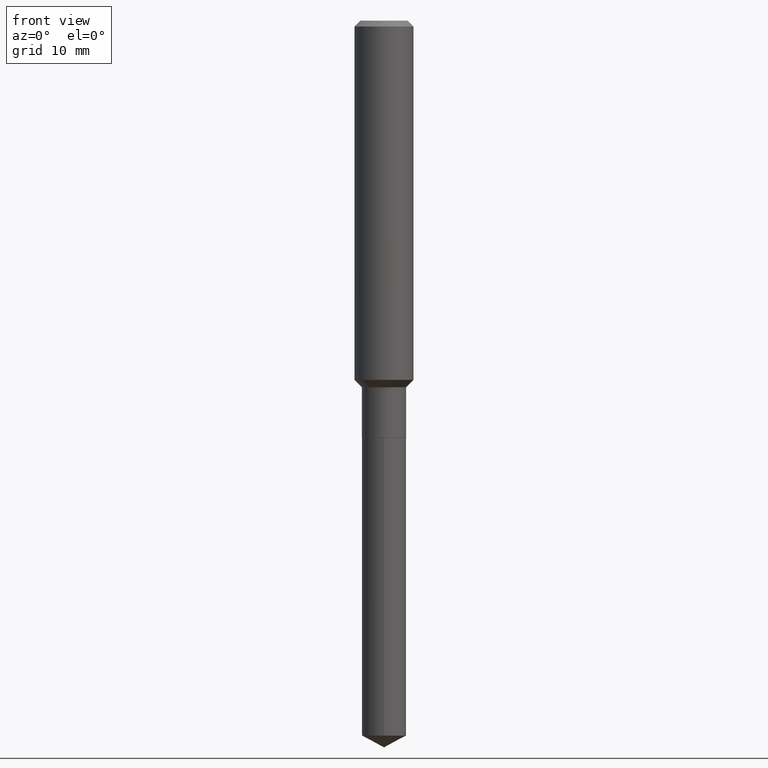
[diagram: clean part render]
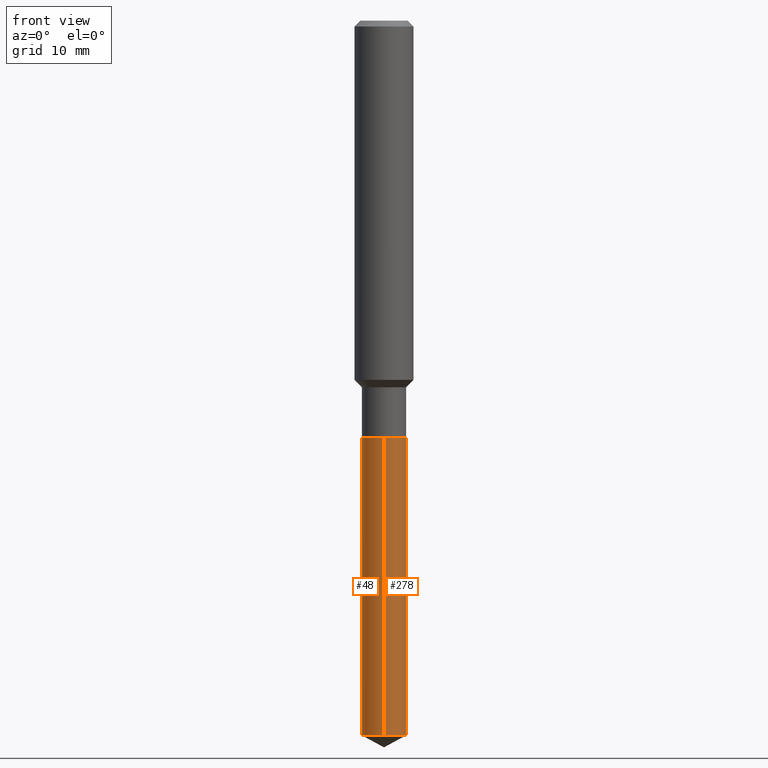
[diagram: same view with one multi-face feature highlighted, each face labeled with its STEP entity id]
A machine part, front view. The highlighted faces form ONE feature: a constant-radius fillet chain: 2 tangent blend faces with common blend radius 2.2504 mm. The faces share edges in the B-rep.
Their STEP definitions:
[1] entity #278 (Cylinder):
#23 = LINE ( 'NONE', #167, #73 ) ;
#24 = DIRECTION ( 'NONE',  ( -6.982962677686265133E-15, -1.000000000000000000, 3.083349879982238325E-15 ) ) ;
#25 = VERTEX_POINT ( 'NONE', #458 ) ;
#30 = CARTESIAN_POINT ( 'NONE',  ( 4.092002953389589284E-29, -5.842295724286235768E-15, -1.673300000000000232 ) ) ;
#73 = VECTOR ( 'NONE', #285, 39.37007874015748143 ) ;
#87 = CIRCLE ( 'NONE', #368, 0.08859999999999999820 ) ;
#88 = EDGE_LOOP ( 'NONE', ( #292, #198, #296, #149 ) ) ;
#121 = EDGE_CURVE ( 'NONE', #288, #25, #356, .T. ) ;
#134 = DIRECTION ( 'NONE',  ( -2.445523282040030284E-29, 3.491403326318364941E-15, 1.000000000000000000 ) ) ;
#138 = CARTESIAN_POINT ( 'NONE',  ( -6.186904932429332373E-16, -0.08860000000001003184, -2.866290544354793024 ) ) ;
#149 = ORIENTED_EDGE ( 'NONE', *, *, #467, .F. ) ;
#165 = DIRECTION ( 'NONE',  ( -6.982962677686265133E-15, -1.000000000000000000, 6.166699759964476650E-15 ) ) ;
#167 = CARTESIAN_POINT ( 'NONE',  ( -6.186904932429622279E-16, -0.08860000000000584075, -1.673299999999999788 ) ) ;
#170 = EDGE_CURVE ( 'NONE', #253, #25, #476, .T. ) ;
#198 = ORIENTED_EDGE ( 'NONE', *, *, #170, .T. ) ;
#204 = VERTEX_POINT ( 'NONE', #138 ) ;
#244 = CARTESIAN_POINT ( 'NONE',  ( 7.009489104862845842E-29, -1.000750687911291857E-14, -2.866290544354793468 ) ) ;
#252 = CARTESIAN_POINT ( 'NONE',  ( 6.295408638835189605E-16, 0.08859999999999000619, -2.866290544354793912 ) ) ;
#253 = VERTEX_POINT ( 'NONE', #252 ) ;
#256 = CARTESIAN_POINT ( 'NONE',  ( 6.295408638834894768E-16, 0.08859999999999415565, -1.673300000000000454 ) ) ;
#278 = ADVANCED_FACE ( 'NONE', ( #334 ), #412, .T. ) ;
#285 = DIRECTION ( 'NONE',  ( -2.445523282040030284E-29, 3.491403326318364941E-15, 1.000000000000000000 ) ) ;
#288 = VERTEX_POINT ( 'NONE', #323 ) ;
#292 = ORIENTED_EDGE ( 'NONE', *, *, #457, .T. ) ;
#293 = AXIS2_PLACEMENT_3D ( 'NONE', #338, #303, #328 ) ;
#296 = ORIENTED_EDGE ( 'NONE', *, *, #121, .F. ) ;
#303 = DIRECTION ( 'NONE',  ( -2.445523282040030004E-29, 3.491403326318364941E-15, 1.000000000000000000 ) ) ;
#323 = CARTESIAN_POINT ( 'NONE',  ( -6.186904932429622279E-16, -0.08860000000000584075, -1.673299999999999788 ) ) ;
#328 = DIRECTION ( 'NONE',  ( -6.982962677686265133E-15, -1.000000000000000000, 3.083349879982238325E-15 ) ) ;
#334 = FACE_OUTER_BOUND ( 'NONE', #88, .T. ) ;
#338 = CARTESIAN_POINT ( 'NONE',  ( 4.092002953389589284E-29, -5.842295724286235768E-15, -1.673300000000000232 ) ) ;
#356 = CIRCLE ( 'NONE', #293, 0.08859999999999999820 ) ;
#358 = DIRECTION ( 'NONE',  ( -2.445523282040030004E-29, 3.491403326318364941E-15, 1.000000000000000000 ) ) ;
#362 = DIRECTION ( 'NONE',  ( -2.445523282040030004E-29, 3.491403326318364941E-15, 1.000000000000000000 ) ) ;
#368 = AXIS2_PLACEMENT_3D ( 'NONE', #244, #358, #165 ) ;
#389 = AXIS2_PLACEMENT_3D ( 'NONE', #30, #362, #24 ) ;
#394 = VECTOR ( 'NONE', #134, 39.37007874015748143 ) ;
#412 = CYLINDRICAL_SURFACE ( 'NONE', #389, 0.08859999999999999820 ) ;
#457 = EDGE_CURVE ( 'NONE', #204, #253, #87, .T. ) ;
#458 = CARTESIAN_POINT ( 'NONE',  ( 6.295408638835189605E-16, 0.08859999999999415565, -1.673300000000000454 ) ) ;
#467 = EDGE_CURVE ( 'NONE', #204, #288, #23, .T. ) ;
#476 = LINE ( 'NONE', #256, #394 ) ;
[2] entity #48 (Cylinder):
#20 = CIRCLE ( 'NONE', #147, 0.08859999999999999820 ) ;
#23 = LINE ( 'NONE', #167, #73 ) ;
#25 = VERTEX_POINT ( 'NONE', #458 ) ;
#39 = DIRECTION ( 'NONE',  ( -6.982962677686265133E-15, -1.000000000000000000, 3.083349879982238325E-15 ) ) ;
#48 = ADVANCED_FACE ( 'NONE', ( #111 ), #228, .T. ) ;
#57 = EDGE_CURVE ( 'NONE', #253, #204, #20, .T. ) ;
#58 = ORIENTED_EDGE ( 'NONE', *, *, #57, .T. ) ;
#61 = EDGE_CURVE ( 'NONE', #25, #288, #90, .T. ) ;
#70 = DIRECTION ( 'NONE',  ( -6.982962677686265133E-15, -1.000000000000000000, 3.083349879982238325E-15 ) ) ;
#73 = VECTOR ( 'NONE', #285, 39.37007874015748143 ) ;
#90 = CIRCLE ( 'NONE', #414, 0.08859999999999999820 ) ;
#108 = CARTESIAN_POINT ( 'NONE',  ( 7.009489104862845842E-29, -1.000750687911291857E-14, -2.866290544354793468 ) ) ;
#111 = FACE_OUTER_BOUND ( 'NONE', #374, .T. ) ;
#124 = ORIENTED_EDGE ( 'NONE', *, *, #61, .F. ) ;
#134 = DIRECTION ( 'NONE',  ( -2.445523282040030284E-29, 3.491403326318364941E-15, 1.000000000000000000 ) ) ;
#138 = CARTESIAN_POINT ( 'NONE',  ( -6.186904932429332373E-16, -0.08860000000001003184, -2.866290544354793024 ) ) ;
#141 = CARTESIAN_POINT ( 'NONE',  ( 4.092002953389589284E-29, -5.842295724286235768E-15, -1.673300000000000232 ) ) ;
#147 = AXIS2_PLACEMENT_3D ( 'NONE', #108, #376, #342 ) ;
#151 = ORIENTED_EDGE ( 'NONE', *, *, #170, .F. ) ;
#167 = CARTESIAN_POINT ( 'NONE',  ( -6.186904932429622279E-16, -0.08860000000000584075, -1.673299999999999788 ) ) ;
#170 = EDGE_CURVE ( 'NONE', #253, #25, #476, .T. ) ;
#204 = VERTEX_POINT ( 'NONE', #138 ) ;
#228 = CYLINDRICAL_SURFACE ( 'NONE', #485, 0.08859999999999999820 ) ;
#240 = ORIENTED_EDGE ( 'NONE', *, *, #467, .T. ) ;
#252 = CARTESIAN_POINT ( 'NONE',  ( 6.295408638835189605E-16, 0.08859999999999000619, -2.866290544354793912 ) ) ;
#253 = VERTEX_POINT ( 'NONE', #252 ) ;
#256 = CARTESIAN_POINT ( 'NONE',  ( 6.295408638834894768E-16, 0.08859999999999415565, -1.673300000000000454 ) ) ;
#265 = CARTESIAN_POINT ( 'NONE',  ( 4.092002953389589284E-29, -5.842295724286235768E-15, -1.673300000000000232 ) ) ;
#285 = DIRECTION ( 'NONE',  ( -2.445523282040030284E-29, 3.491403326318364941E-15, 1.000000000000000000 ) ) ;
#288 = VERTEX_POINT ( 'NONE', #323 ) ;
#323 = CARTESIAN_POINT ( 'NONE',  ( -6.186904932429622279E-16, -0.08860000000000584075, -1.673299999999999788 ) ) ;
#342 = DIRECTION ( 'NONE',  ( -6.982962677686265133E-15, -1.000000000000000000, 6.166699759964476650E-15 ) ) ;
#374 = EDGE_LOOP ( 'NONE', ( #151, #58, #240, #124 ) ) ;
#376 = DIRECTION ( 'NONE',  ( -2.445523282040030004E-29, 3.491403326318364941E-15, 1.000000000000000000 ) ) ;
#385 = DIRECTION ( 'NONE',  ( -2.445523282040030004E-29, 3.491403326318364941E-15, 1.000000000000000000 ) ) ;
#394 = VECTOR ( 'NONE', #134, 39.37007874015748143 ) ;
#414 = AXIS2_PLACEMENT_3D ( 'NONE', #141, #451, #39 ) ;
#451 = DIRECTION ( 'NONE',  ( -2.445523282040030004E-29, 3.491403326318364941E-15, 1.000000000000000000 ) ) ;
#458 = CARTESIAN_POINT ( 'NONE',  ( 6.295408638835189605E-16, 0.08859999999999415565, -1.673300000000000454 ) ) ;
#467 = EDGE_CURVE ( 'NONE', #204, #288, #23, .T. ) ;
#476 = LINE ( 'NONE', #256, #394 ) ;
#485 = AXIS2_PLACEMENT_3D ( 'NONE', #265, #385, #70 ) ;